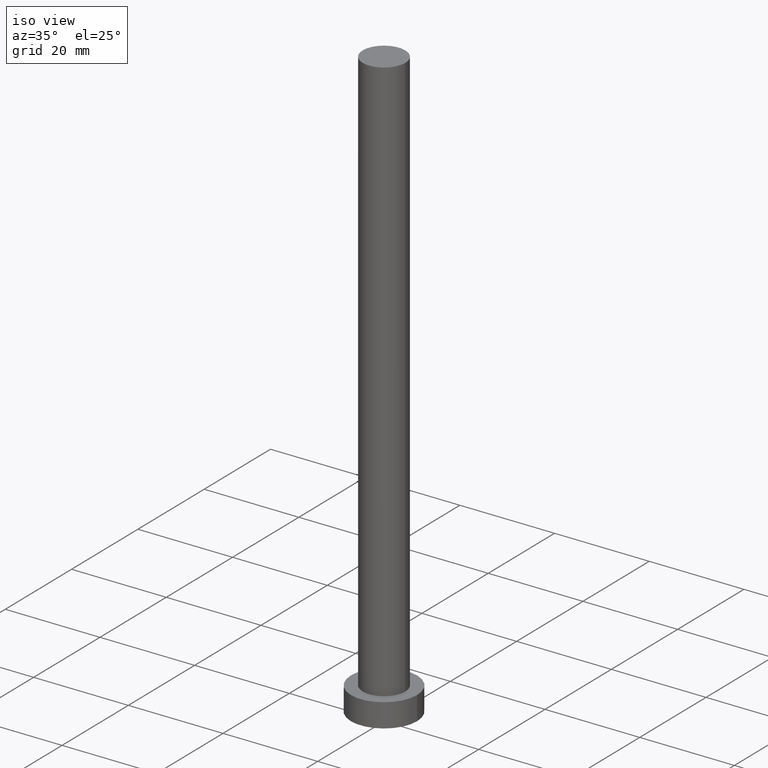
[diagram: clean part render]
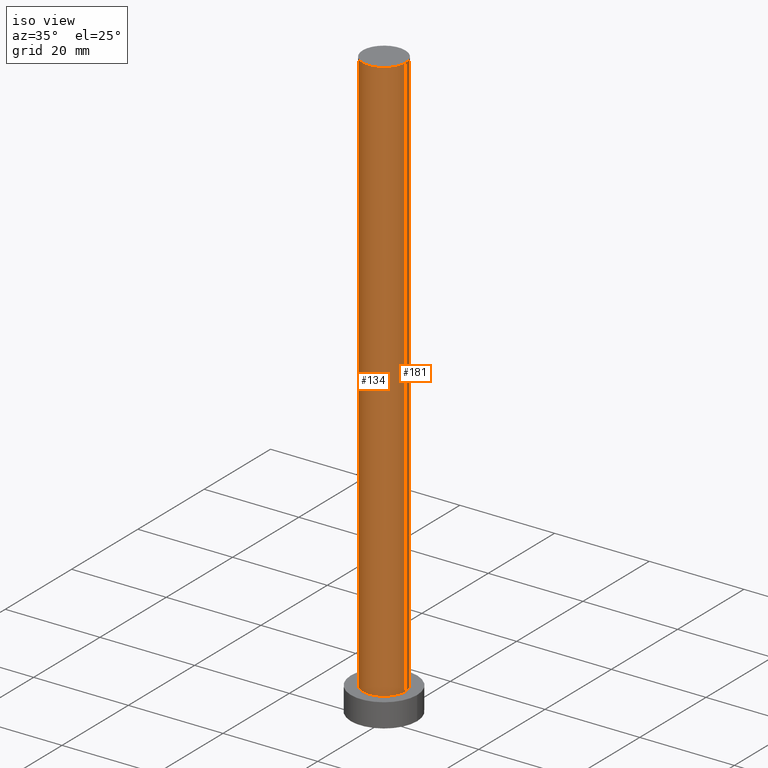
[diagram: same view with one multi-face feature highlighted, each face labeled with its STEP entity id]
A machine part, iso view. The highlighted faces form ONE feature: a constant-radius fillet chain: 2 tangent blend faces with common blend radius 4.5 mm. The faces share edges in the B-rep.
Their STEP definitions:
[1] entity #134 (Cylinder):
#4 = DIRECTION ( 'NONE',  ( 0.000000000000000000, 0.000000000000000000, 1.000000000000000000 ) ) ;
#7 = CARTESIAN_POINT ( 'NONE',  ( -4.500000000000000888, 0.000000000000000000, 125.0000000000000000 ) ) ;
#15 = CARTESIAN_POINT ( 'NONE',  ( -4.500000000000000888, 0.000000000000000000, 125.0000000000000000 ) ) ;
#20 = CARTESIAN_POINT ( 'NONE',  ( 4.500000000000000888, 5.510910596163089556E-16, 5.000000000000000000 ) ) ;
#22 = ORIENTED_EDGE ( 'NONE', *, *, #91, .T. ) ;
#32 = CIRCLE ( 'NONE', #56, 4.500000000000000888 ) ;
#36 = CARTESIAN_POINT ( 'NONE',  ( -4.500000000000000888, 0.000000000000000000, 5.000000000000000000 ) ) ;
#39 = CYLINDRICAL_SURFACE ( 'NONE', #140, 4.500000000000000888 ) ;
#46 = CIRCLE ( 'NONE', #138, 4.500000000000000888 ) ;
#50 = ORIENTED_EDGE ( 'NONE', *, *, #221, .T. ) ;
#56 = AXIS2_PLACEMENT_3D ( 'NONE', #84, #81, #227 ) ;
#81 = DIRECTION ( 'NONE',  ( 0.000000000000000000, 0.000000000000000000, 1.000000000000000000 ) ) ;
#84 = CARTESIAN_POINT ( 'NONE',  ( 0.000000000000000000, 0.000000000000000000, 5.000000000000000000 ) ) ;
#85 = VERTEX_POINT ( 'NONE', #36 ) ;
#89 = VERTEX_POINT ( 'NONE', #93 ) ;
#91 = EDGE_CURVE ( 'NONE', #168, #85, #222, .T. ) ;
#93 = CARTESIAN_POINT ( 'NONE',  ( 4.500000000000000888, 5.510910596163089556E-16, 125.0000000000000000 ) ) ;
#112 = ORIENTED_EDGE ( 'NONE', *, *, #228, .F. ) ;
#119 = FACE_OUTER_BOUND ( 'NONE', #190, .T. ) ;
#120 = CARTESIAN_POINT ( 'NONE',  ( 0.000000000000000000, 0.000000000000000000, 125.0000000000000000 ) ) ;
#125 = CARTESIAN_POINT ( 'NONE',  ( 4.500000000000000888, 5.510910596163089556E-16, 125.0000000000000000 ) ) ;
#131 = DIRECTION ( 'NONE',  ( -0.000000000000000000, -0.000000000000000000, -1.000000000000000000 ) ) ;
#132 = CARTESIAN_POINT ( 'NONE',  ( 0.000000000000000000, 0.000000000000000000, 125.0000000000000000 ) ) ;
#134 = ADVANCED_FACE ( 'NONE', ( #119 ), #39, .T. ) ;
#138 = AXIS2_PLACEMENT_3D ( 'NONE', #132, #4, #193 ) ;
#140 = AXIS2_PLACEMENT_3D ( 'NONE', #120, #131, #200 ) ;
#141 = EDGE_CURVE ( 'NONE', #168, #89, #46, .T. ) ;
#149 = VECTOR ( 'NONE', #208, 1000.000000000000000 ) ;
#166 = VERTEX_POINT ( 'NONE', #20 ) ;
#168 = VERTEX_POINT ( 'NONE', #15 ) ;
#177 = DIRECTION ( 'NONE',  ( -0.000000000000000000, -0.000000000000000000, -1.000000000000000000 ) ) ;
#179 = VECTOR ( 'NONE', #177, 1000.000000000000000 ) ;
#190 = EDGE_LOOP ( 'NONE', ( #112, #229, #22, #50 ) ) ;
#193 = DIRECTION ( 'NONE',  ( 1.000000000000000000, 0.000000000000000000, 0.000000000000000000 ) ) ;
#200 = DIRECTION ( 'NONE',  ( -1.000000000000000000, 0.000000000000000000, 0.000000000000000000 ) ) ;
#208 = DIRECTION ( 'NONE',  ( -0.000000000000000000, -0.000000000000000000, -1.000000000000000000 ) ) ;
#221 = EDGE_CURVE ( 'NONE', #85, #166, #32, .T. ) ;
#222 = LINE ( 'NONE', #7, #179 ) ;
#227 = DIRECTION ( 'NONE',  ( 1.000000000000000000, 0.000000000000000000, 0.000000000000000000 ) ) ;
#228 = EDGE_CURVE ( 'NONE', #89, #166, #248, .T. ) ;
#229 = ORIENTED_EDGE ( 'NONE', *, *, #141, .F. ) ;
#248 = LINE ( 'NONE', #125, #149 ) ;
[2] entity #181 (Cylinder):
#7 = CARTESIAN_POINT ( 'NONE',  ( -4.500000000000000888, 0.000000000000000000, 125.0000000000000000 ) ) ;
#15 = CARTESIAN_POINT ( 'NONE',  ( -4.500000000000000888, 0.000000000000000000, 125.0000000000000000 ) ) ;
#20 = CARTESIAN_POINT ( 'NONE',  ( 4.500000000000000888, 5.510910596163089556E-16, 5.000000000000000000 ) ) ;
#31 = AXIS2_PLACEMENT_3D ( 'NONE', #223, #220, #40 ) ;
#33 = ORIENTED_EDGE ( 'NONE', *, *, #91, .F. ) ;
#36 = CARTESIAN_POINT ( 'NONE',  ( -4.500000000000000888, 0.000000000000000000, 5.000000000000000000 ) ) ;
#40 = DIRECTION ( 'NONE',  ( -1.000000000000000000, 0.000000000000000000, 0.000000000000000000 ) ) ;
#42 = CARTESIAN_POINT ( 'NONE',  ( 0.000000000000000000, 0.000000000000000000, 125.0000000000000000 ) ) ;
#68 = ORIENTED_EDGE ( 'NONE', *, *, #96, .T. ) ;
#82 = CIRCLE ( 'NONE', #197, 4.500000000000000888 ) ;
#83 = AXIS2_PLACEMENT_3D ( 'NONE', #240, #178, #115 ) ;
#85 = VERTEX_POINT ( 'NONE', #36 ) ;
#89 = VERTEX_POINT ( 'NONE', #93 ) ;
#91 = EDGE_CURVE ( 'NONE', #168, #85, #222, .T. ) ;
#93 = CARTESIAN_POINT ( 'NONE',  ( 4.500000000000000888, 5.510910596163089556E-16, 125.0000000000000000 ) ) ;
#96 = EDGE_CURVE ( 'NONE', #166, #85, #164, .T. ) ;
#104 = EDGE_CURVE ( 'NONE', #89, #168, #82, .T. ) ;
#115 = DIRECTION ( 'NONE',  ( 1.000000000000000000, 0.000000000000000000, 0.000000000000000000 ) ) ;
#125 = CARTESIAN_POINT ( 'NONE',  ( 4.500000000000000888, 5.510910596163089556E-16, 125.0000000000000000 ) ) ;
#142 = ORIENTED_EDGE ( 'NONE', *, *, #228, .T. ) ;
#149 = VECTOR ( 'NONE', #208, 1000.000000000000000 ) ;
#156 = CYLINDRICAL_SURFACE ( 'NONE', #31, 4.500000000000000888 ) ;
#164 = CIRCLE ( 'NONE', #83, 4.500000000000000888 ) ;
#166 = VERTEX_POINT ( 'NONE', #20 ) ;
#168 = VERTEX_POINT ( 'NONE', #15 ) ;
#173 = DIRECTION ( 'NONE',  ( 1.000000000000000000, 0.000000000000000000, 0.000000000000000000 ) ) ;
#177 = DIRECTION ( 'NONE',  ( -0.000000000000000000, -0.000000000000000000, -1.000000000000000000 ) ) ;
#178 = DIRECTION ( 'NONE',  ( 0.000000000000000000, 0.000000000000000000, 1.000000000000000000 ) ) ;
#179 = VECTOR ( 'NONE', #177, 1000.000000000000000 ) ;
#180 = EDGE_LOOP ( 'NONE', ( #233, #142, #68, #33 ) ) ;
#181 = ADVANCED_FACE ( 'NONE', ( #195 ), #156, .T. ) ;
#195 = FACE_OUTER_BOUND ( 'NONE', #180, .T. ) ;
#197 = AXIS2_PLACEMENT_3D ( 'NONE', #42, #219, #173 ) ;
#208 = DIRECTION ( 'NONE',  ( -0.000000000000000000, -0.000000000000000000, -1.000000000000000000 ) ) ;
#219 = DIRECTION ( 'NONE',  ( 0.000000000000000000, 0.000000000000000000, 1.000000000000000000 ) ) ;
#220 = DIRECTION ( 'NONE',  ( -0.000000000000000000, -0.000000000000000000, -1.000000000000000000 ) ) ;
#222 = LINE ( 'NONE', #7, #179 ) ;
#223 = CARTESIAN_POINT ( 'NONE',  ( 0.000000000000000000, 0.000000000000000000, 125.0000000000000000 ) ) ;
#228 = EDGE_CURVE ( 'NONE', #89, #166, #248, .T. ) ;
#233 = ORIENTED_EDGE ( 'NONE', *, *, #104, .F. ) ;
#240 = CARTESIAN_POINT ( 'NONE',  ( 0.000000000000000000, 0.000000000000000000, 5.000000000000000000 ) ) ;
#248 = LINE ( 'NONE', #125, #149 ) ;